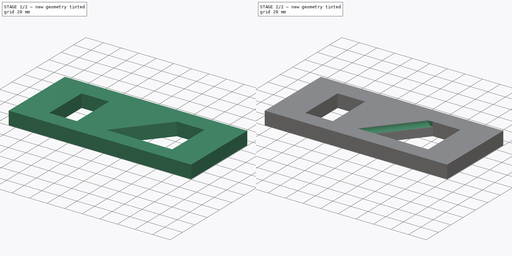
[diagram: build sequence overview — one tinted view per stage of 2, left to right]
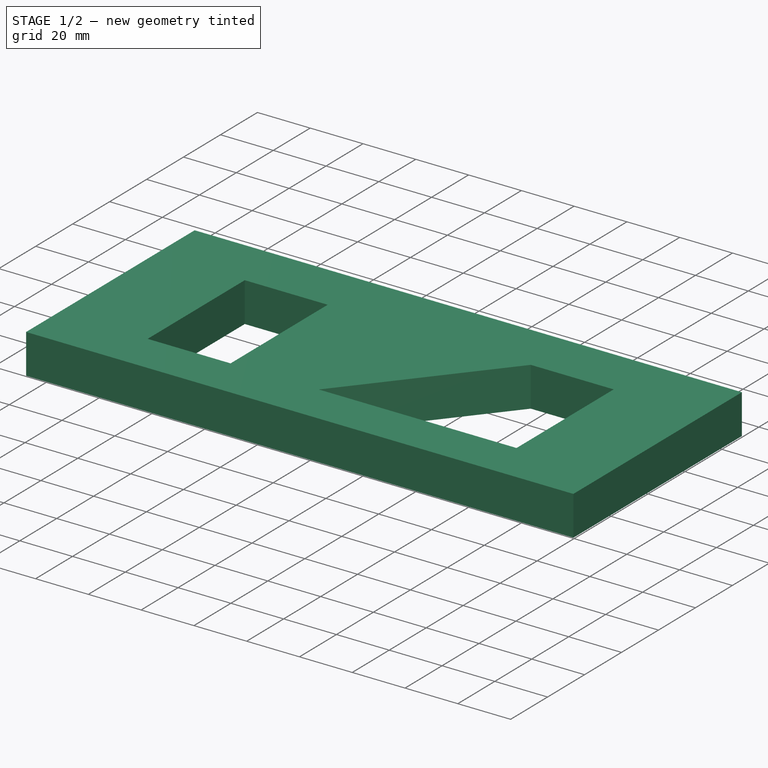
[diagram: stage 1 of 2 — iso view after this stage's code; geometry added in this stage tinted green]
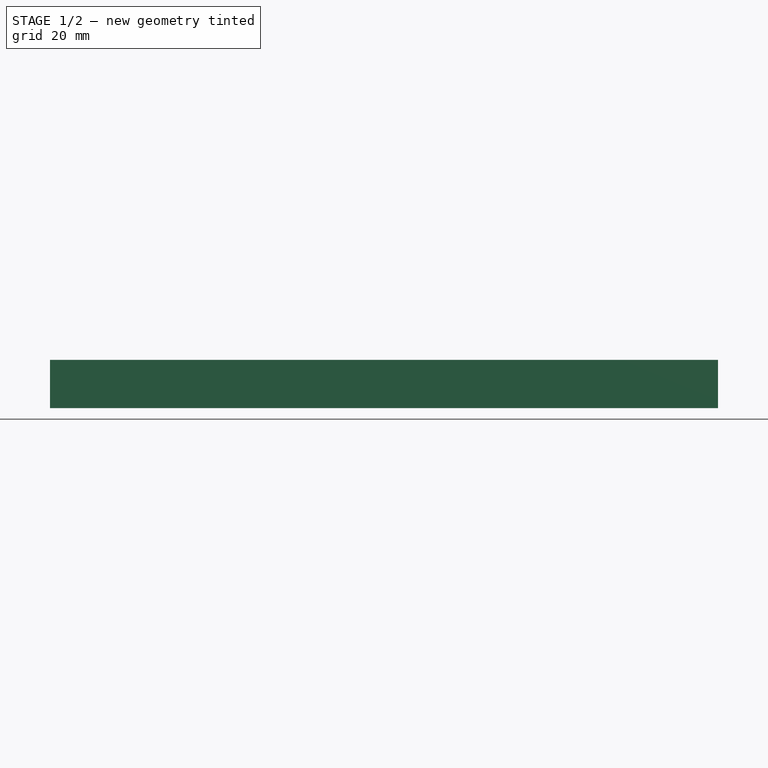
[diagram: stage 1 of 2 — front view after this stage's code; geometry added in this stage tinted green]
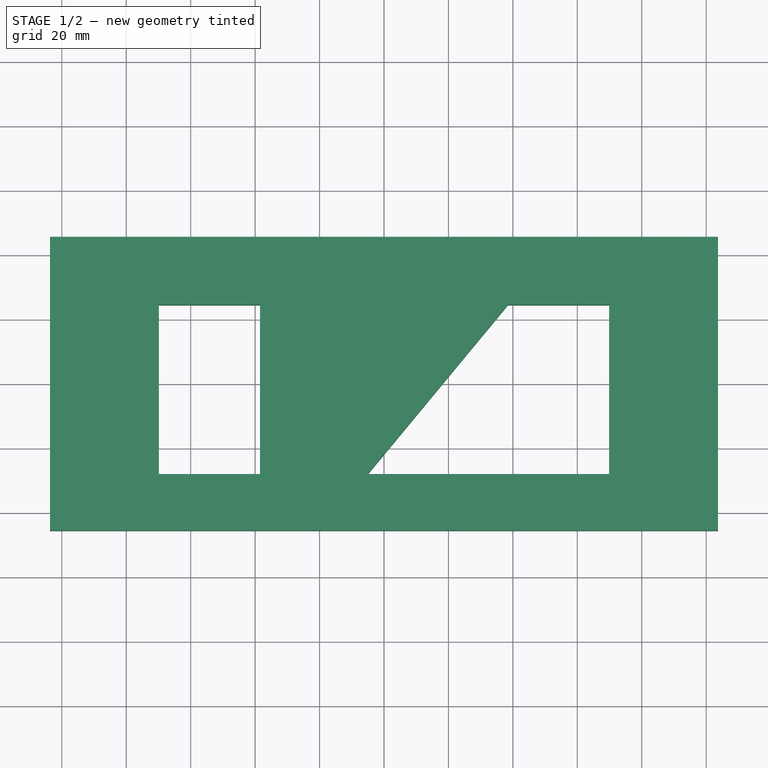
[diagram: stage 1 of 2 — top view after this stage's code; geometry added in this stage tinted green]
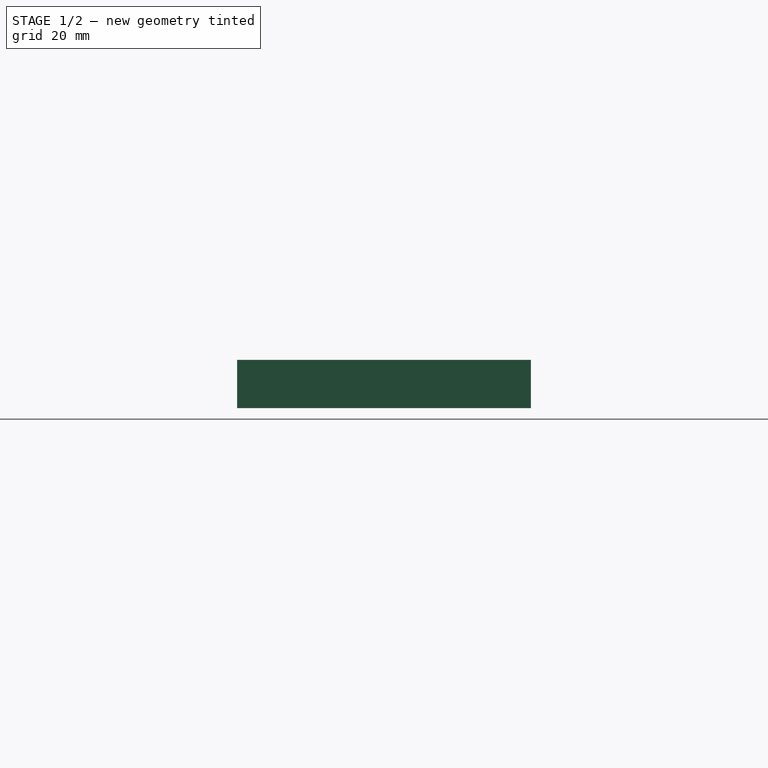
[diagram: stage 1 of 2 — right view after this stage's code; geometry added in this stage tinted green]
FCSTD DOCUMENT  (FreeCAD 0.20R29410 (Git))
Label: MangoJelly_Solutions_Tutorial_Ep13_1
License: All rights reserved
LicenseURL: http://en.wikipedia.org/wiki/All_rights_reserved
objects: Sketcher::SketchObject×2, PartDesign::Pad×1, PartDesign::Pocket×1, PartDesign::Body×1
note: 7 computed .brp shape members not serialized (recipe doc carries the construction recipe); baked Part::Feature solids carry a one-line shape summary decoded from their .brp

FEATURE [Sketcher::SketchObject] Sketch
  FullyConstrained = false
  MapMode = 5
  Support = -> [XY_Plane]
  sketch-geometry (13):
    g0: LineSegment StartX=-103.679 StartY=45.5928 StartZ=0 EndX=-103.679 EndY=-45.5928 EndZ=0
    g1: LineSegment StartX=-103.679 StartY=-45.5928 StartZ=0 EndX=103.679 EndY=-45.5928 EndZ=0
    g2: LineSegment StartX=103.679 StartY=-45.5928 StartZ=0 EndX=103.679 EndY=45.5928 EndZ=0
    g3: LineSegment StartX=103.679 StartY=45.5928 StartZ=0 EndX=-103.679 EndY=45.5928 EndZ=0
    g4: GeomPoint X=0 Y=0 Z=0
    g5: LineSegment StartX=-69.8885 StartY=24.4784 StartZ=0 EndX=-38.4773 EndY=24.4784 EndZ=0
    g6: LineSegment StartX=-38.4773 StartY=24.4784 StartZ=0 EndX=-38.4773 EndY=-28.0782 EndZ=0
    g7: LineSegment StartX=-38.4773 StartY=-28.0782 StartZ=0 EndX=-69.8885 EndY=-28.0782 EndZ=0
    g8: LineSegment StartX=-69.8885 StartY=-28.0782 StartZ=0 EndX=-69.8885 EndY=24.4784 EndZ=0
    g9: LineSegment StartX=69.8885 StartY=24.4784 StartZ=0 EndX=38.4773 EndY=24.4784 EndZ=0
    g10: LineSegment StartX=38.4773 StartY=24.4784 StartZ=0 EndX=-5.0388 EndY=-28.0782 EndZ=0
    g11: LineSegment StartX=-5.0388 StartY=-28.0782 StartZ=0 EndX=69.8885 EndY=-28.0782 EndZ=0
    g12: LineSegment StartX=69.8885 StartY=-28.0782 StartZ=0 EndX=69.8885 EndY=24.4784 EndZ=0
  constraints (26):
    c: Coincident(g0,g1)
    c: Coincident(g1,g2)
    c: Coincident(g2,g3)
    c: Coincident(g3,g0)
    c: Horizontal(g1)
    c: Horizontal(g3)
    c: Vertical(g0)
    c: Vertical(g2)
    c: Symmetric(g1,g0,g4)
    c: Coincident(g4,g-1)
    c: Coincident(g5,g6)
    c: Coincident(g6,g7)
    c: Coincident(g7,g8)
    c: Coincident(g8,g5)
    c: Horizontal(g5)
    c: Horizontal(g7)
    c: Vertical(g6)
    c: Vertical(g8)
    c: Coincident(g9,g10)
    c: Coincident(g10,g11)
    c: Coincident(g11,g12)
    c: Coincident(g12,g9)
    c: Horizontal(g9)
    c: Horizontal(g11)
    c: Vertical(g12)
    c: Horizontal(g10,g6)
FEATURE [PartDesign::Pad] Pad
  Direction = (0,0,1)
  Length = 15
  Length2 = 10
  Profile = -> Sketch
  ReferenceAxis = -> Sketch [N_Axis]
  Type = 0
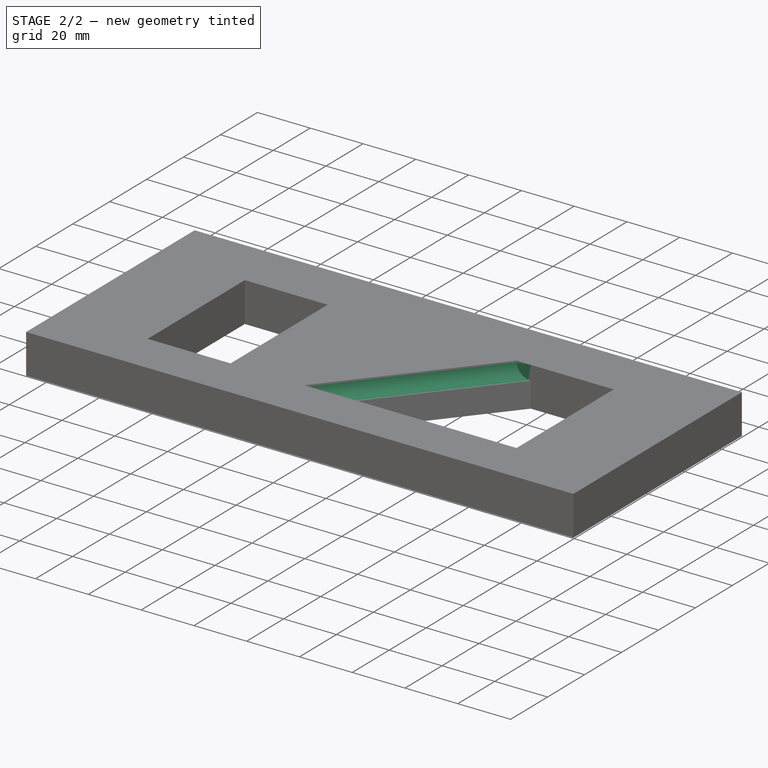
[diagram: stage 2 of 2 — iso view after this stage's code; geometry added in this stage tinted green]
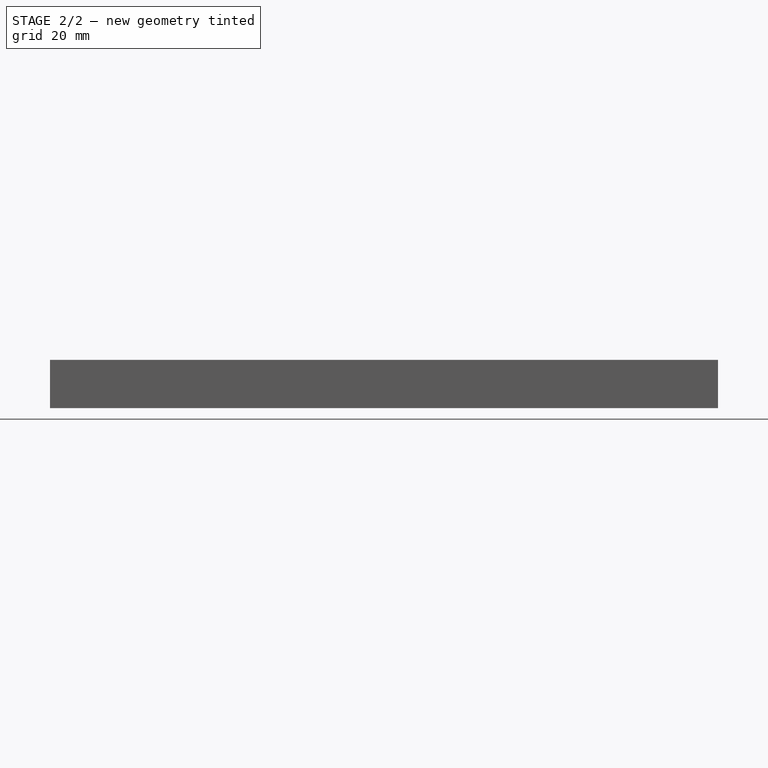
[diagram: stage 2 of 2 — front view after this stage's code; geometry added in this stage tinted green]
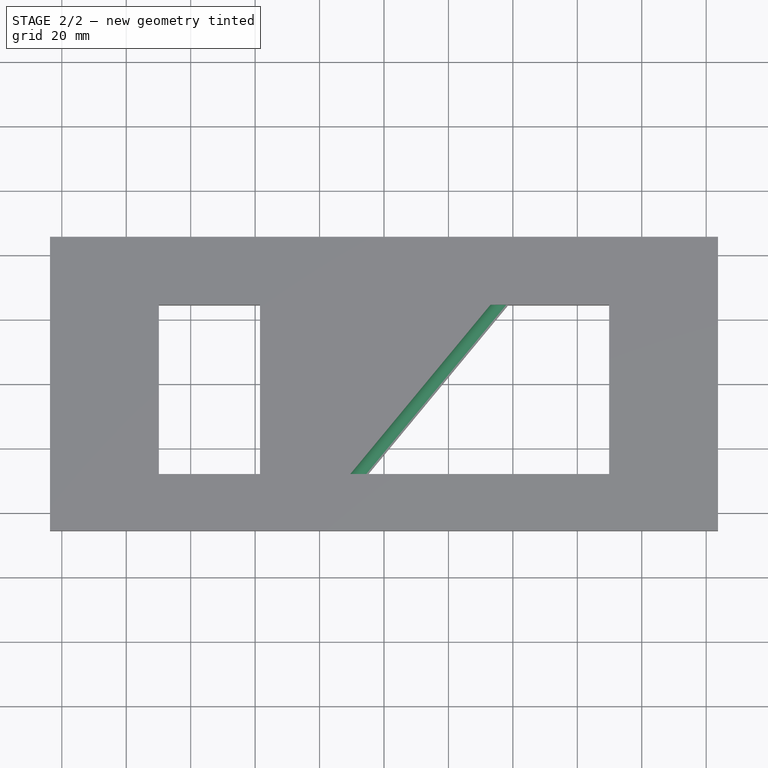
[diagram: stage 2 of 2 — top view after this stage's code; geometry added in this stage tinted green]
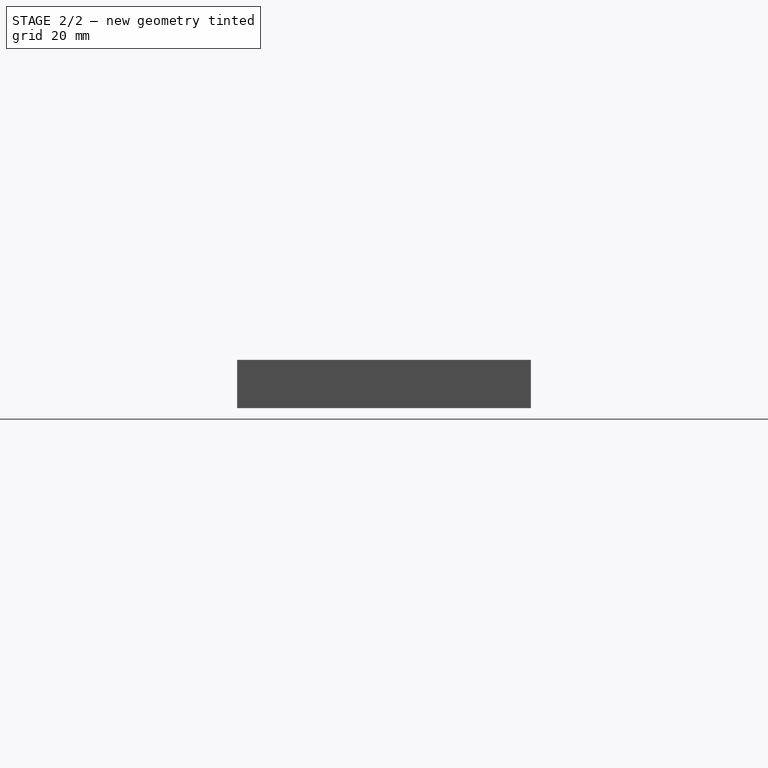
[diagram: stage 2 of 2 — right view after this stage's code; geometry added in this stage tinted green]
FEATURE [Sketcher::SketchObject] Sketch001
  AttachmentOffset = pos=(-1,0,0) rot=(0,0,1;0rad)
  ExternalGeometry = -> [Pad]
  FullyConstrained = false
  MapMode = 5
  Placement = pos=(1,-28.0782,0) rot=(0,0.707107,0.707107;3.14159rad)
  Support = -> [Pad]
  sketch-geometry (1):
    g0: Circle CenterX=6.0388 CenterY=15 CenterZ=0 NormalX=0 NormalY=0 NormalZ=1 AngleXU=0 Radius=5.43524
  constraints (1):
    c: Coincident(g0,g-3)
FEATURE [PartDesign::Pocket] Pocket
  BaseFeature = -> Pad
  Direction = (0.63775,0.770244,0)
  Length = 5
  Length2 = 5
  Profile = -> Sketch001
  ReferenceAxis = -> Pad [Edge19]
  Type = 2
FEATURE [PartDesign::Body] Body
  Group = -> [Sketch,Pad,Sketch001,Pocket]
  Origin = -> Origin
  Tip = -> Pocket
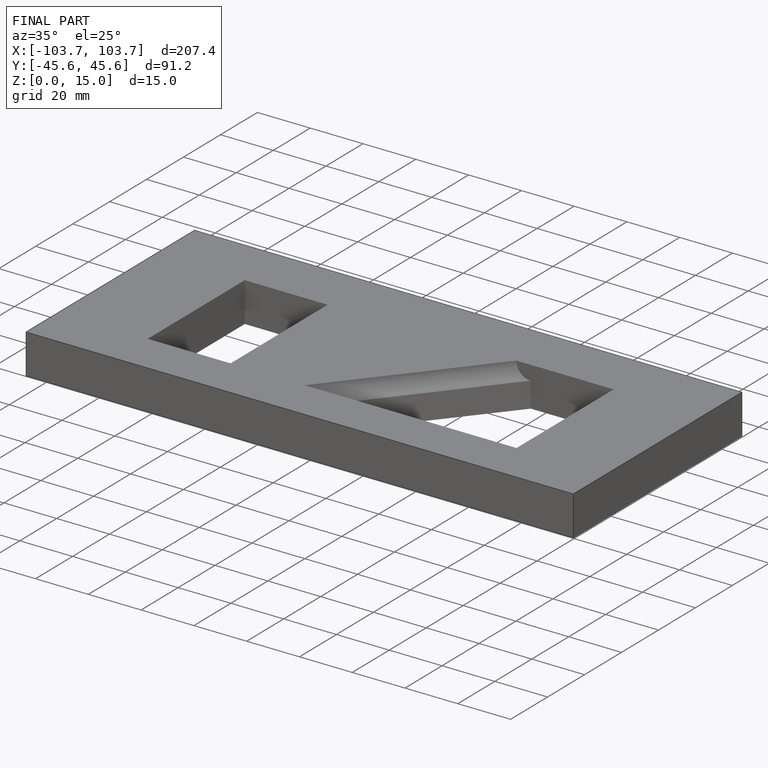
[diagram: finished part — iso view with bounding-box wireframe]
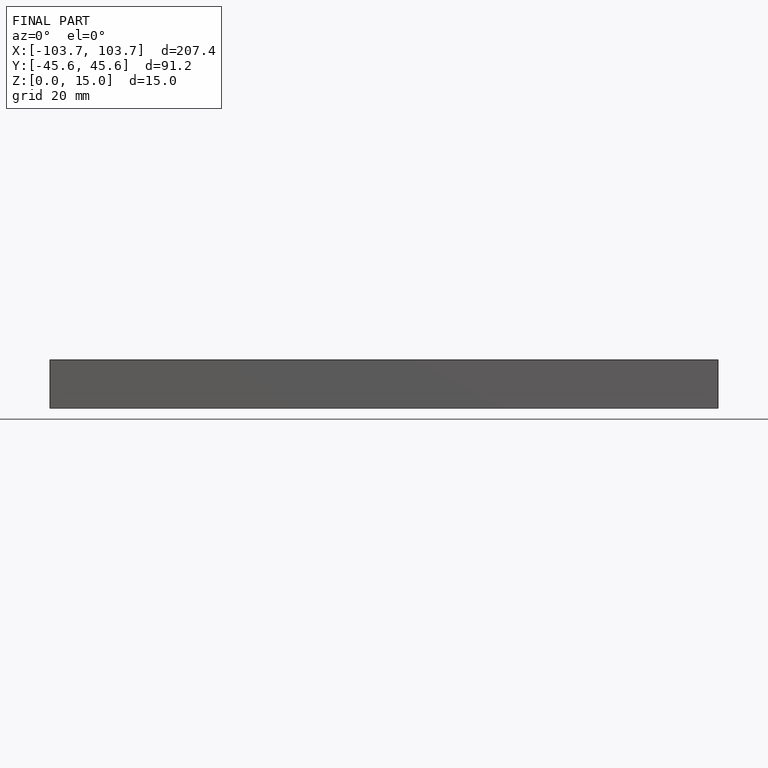
[diagram: finished part — front view with bounding-box wireframe]
